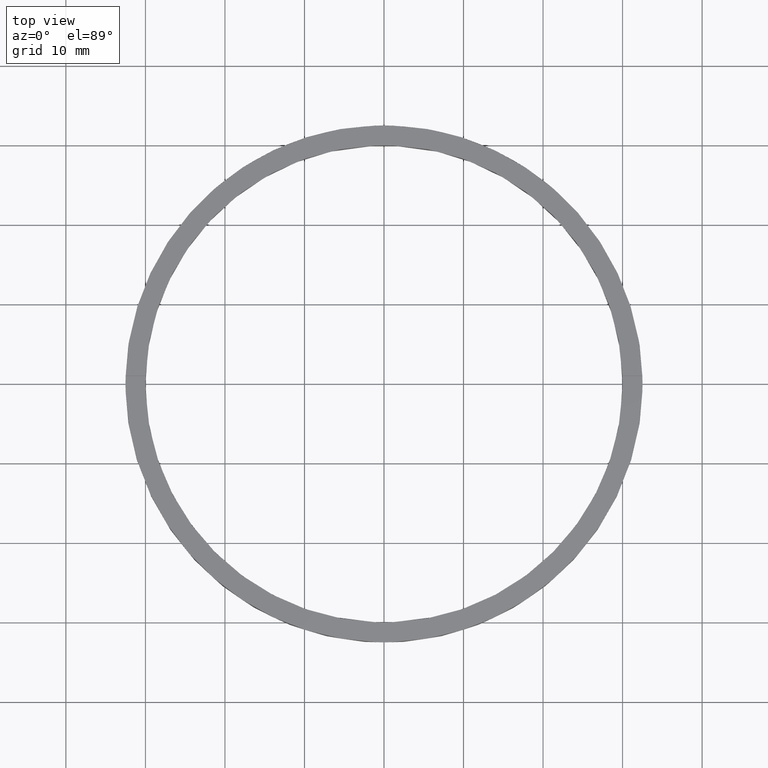
[diagram: clean part render]
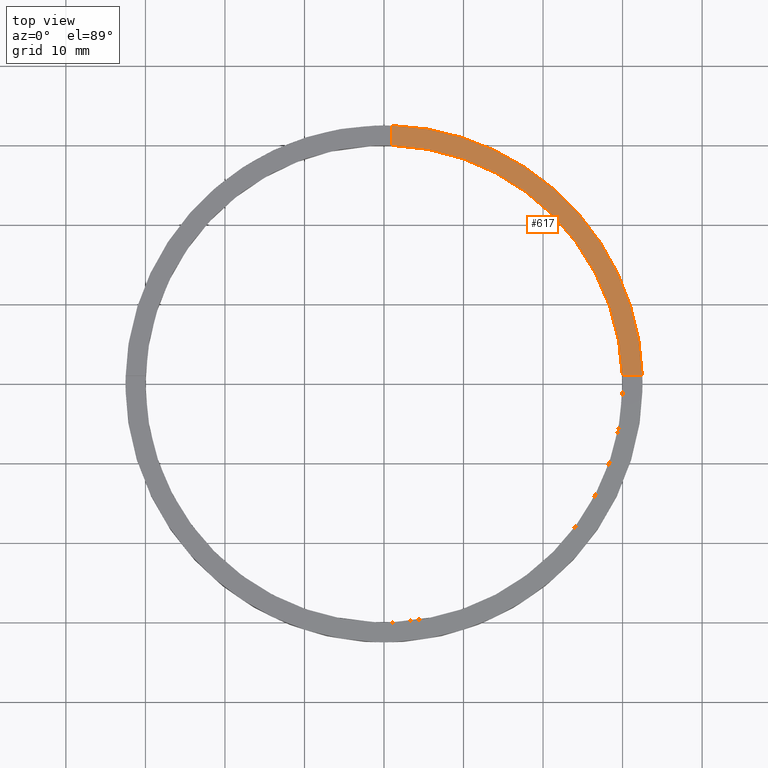
[diagram: same view with one face highlighted and labeled with its STEP entity id]
A machine part, top view. The second image highlights one B-rep face of the part: STEP entity #617.
In plain terms, the highlighted planar face has unit normal (0, 0, 1).
Its self-contained STEP definition (entity closure, byte-faithful):
#28 = VERTEX_POINT ( 'NONE', #503 ) ;
#60 = LINE ( 'NONE', #158, #570 ) ;
#64 = EDGE_CURVE ( 'NONE', #28, #303, #762, .T. ) ;
#76 = AXIS2_PLACEMENT_3D ( 'NONE', #100, #333, #513 ) ;
#89 = FACE_OUTER_BOUND ( 'NONE', #564, .T. ) ;
#100 = CARTESIAN_POINT ( 'NONE',  ( 0.000000000000000000, 0.000000000000000000, 3.000000000000000000 ) ) ;
#122 = DIRECTION ( 'NONE',  ( 0.000000000000000000, 0.000000000000000000, 1.000000000000000000 ) ) ;
#140 = AXIS2_PLACEMENT_3D ( 'NONE', #452, #684, #631 ) ;
#158 = CARTESIAN_POINT ( 'NONE',  ( 0.9999999999999753530, 22.50000000000000000, 3.000000000000000000 ) ) ;
#205 = ORIENTED_EDGE ( 'NONE', *, *, #64, .T. ) ;
#248 = CARTESIAN_POINT ( 'NONE',  ( 0.9999999999999753530, 29.98332870112989923, 3.000000000000000000 ) ) ;
#253 = EDGE_CURVE ( 'NONE', #314, #480, #390, .T. ) ;
#295 = ORIENTED_EDGE ( 'NONE', *, *, #253, .F. ) ;
#302 = EDGE_CURVE ( 'NONE', #28, #314, #492, .T. ) ;
#303 = VERTEX_POINT ( 'NONE', #472 ) ;
#314 = VERTEX_POINT ( 'NONE', #658 ) ;
#333 = DIRECTION ( 'NONE',  ( 0.000000000000000000, 0.000000000000000000, 1.000000000000000000 ) ) ;
#350 = EDGE_CURVE ( 'NONE', #480, #303, #60, .T. ) ;
#390 = CIRCLE ( 'NONE', #140, 30.00000000000000000 ) ;
#413 = DIRECTION ( 'NONE',  ( -1.000000000000000000, -6.505213034913022906E-17, -0.000000000000000000 ) ) ;
#421 = CARTESIAN_POINT ( 'NONE',  ( 0.000000000000000000, 0.000000000000000000, 3.000000000000000000 ) ) ;
#443 = AXIS2_PLACEMENT_3D ( 'NONE', #421, #122, #554 ) ;
#452 = CARTESIAN_POINT ( 'NONE',  ( 0.000000000000000000, 0.000000000000000000, 3.000000000000000000 ) ) ;
#472 = CARTESIAN_POINT ( 'NONE',  ( 0.9999999999999753530, 32.48461174156157227, 3.000000000000000000 ) ) ;
#480 = VERTEX_POINT ( 'NONE', #248 ) ;
#492 = LINE ( 'NONE', #760, #731 ) ;
#500 = ORIENTED_EDGE ( 'NONE', *, *, #302, .F. ) ;
#503 = CARTESIAN_POINT ( 'NONE',  ( 32.48461174156157938, 0.9999999999998414602, 3.000000000000000000 ) ) ;
#513 = DIRECTION ( 'NONE',  ( 1.000000000000000000, 0.000000000000000000, -0.000000000000000000 ) ) ;
#554 = DIRECTION ( 'NONE',  ( 1.000000000000000000, 0.000000000000000000, 0.000000000000000000 ) ) ;
#564 = EDGE_LOOP ( 'NONE', ( #779, #295, #500, #205 ) ) ;
#570 = VECTOR ( 'NONE', #654, 1000.000000000000000 ) ;
#617 = ADVANCED_FACE ( 'NONE', ( #89 ), #674, .T. ) ;
#631 = DIRECTION ( 'NONE',  ( 1.000000000000000000, 0.000000000000000000, 0.000000000000000000 ) ) ;
#654 = DIRECTION ( 'NONE',  ( 0.000000000000000000, 1.000000000000000000, 0.000000000000000000 ) ) ;
#658 = CARTESIAN_POINT ( 'NONE',  ( 29.98332870112990278, 0.9999999999998412381, 3.000000000000000000 ) ) ;
#674 = PLANE ( 'NONE',  #76 ) ;
#684 = DIRECTION ( 'NONE',  ( 0.000000000000000000, 0.000000000000000000, 1.000000000000000000 ) ) ;
#731 = VECTOR ( 'NONE', #413, 1000.000000000000000 ) ;
#760 = CARTESIAN_POINT ( 'NONE',  ( 22.49999999999999645, 0.9999999999998409050, 3.000000000000000000 ) ) ;
#762 = CIRCLE ( 'NONE', #443, 32.50000000000000000 ) ;
#779 = ORIENTED_EDGE ( 'NONE', *, *, #350, .F. ) ;